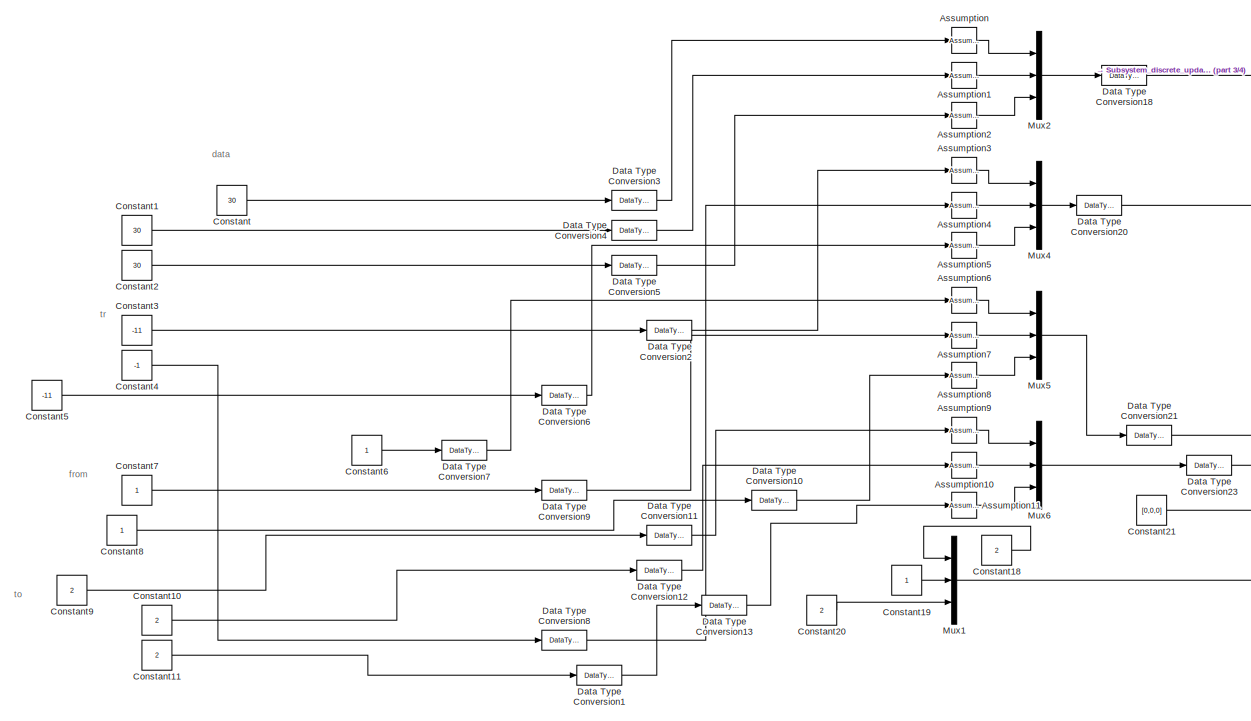
[diagram: root canvas - part 1/4, middle left region]
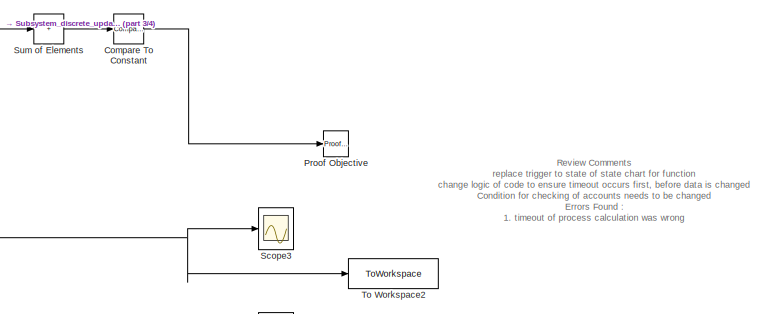
[diagram: root canvas - part 2/4, top right region]
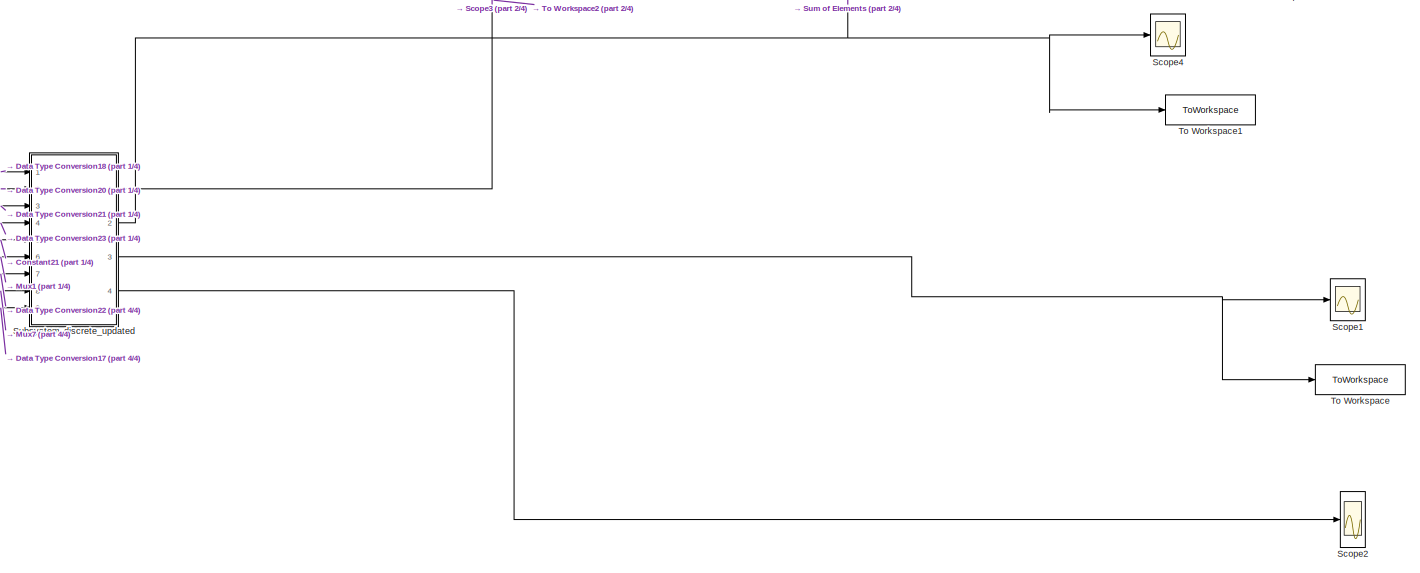
[diagram: root canvas - part 3/4, bottom right region]
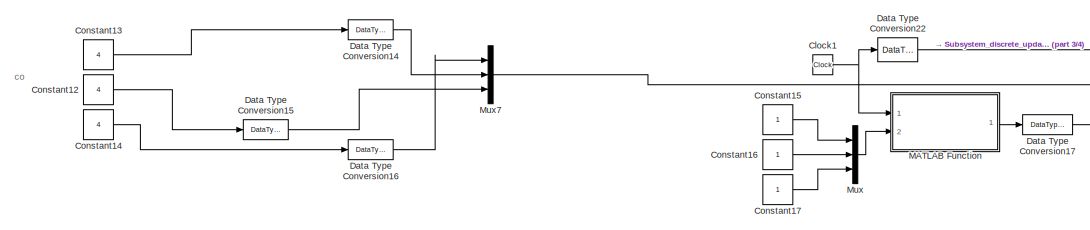
[diagram: root canvas - part 4/4, bottom left region]
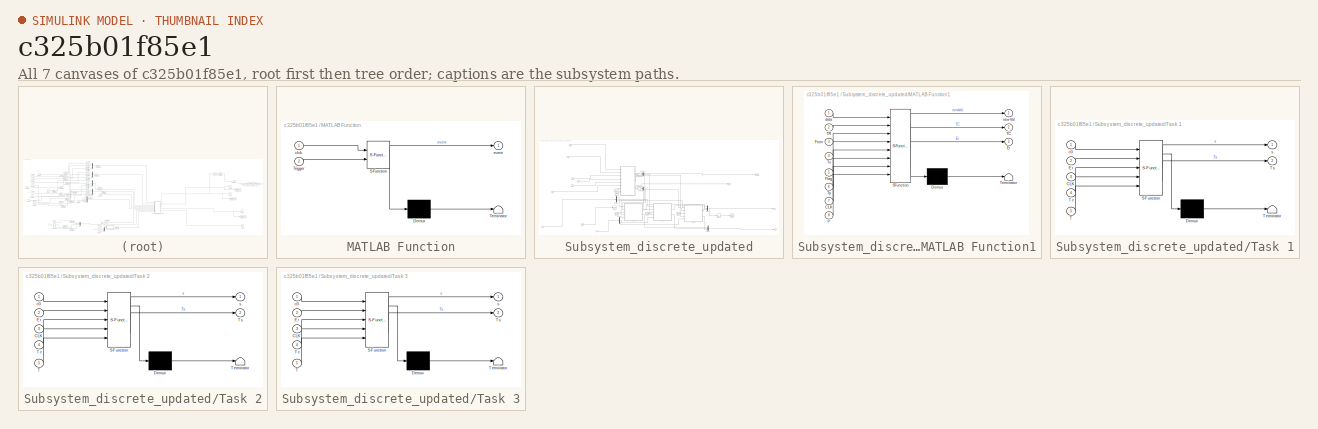
[diagram: thumbnail index - all 7 canvases of the model, root first then tree order]
MODEL slx_c325b01f85e1
KIND model
CONFIG AbsTol = auto
CONFIG EnableMultiTasking = off
CONFIG FixedStep = 1
CONFIG MaxStep = auto
CONFIG MinStep = auto
CONFIG RelTol = 1e-3
CONFIG SampleTimeConstraint = Unconstrained
CONFIG SolverName = FixedStepDiscrete
CONFIG StartTime = 0.0
CONFIG StopTime = 20.0
BLOCK [Reference] Assumption  REF=sldvlib/Objectives and Constraints/Assumption
  AttributesFormatString = %<intervals>
  NameLocation = top
  Ports = [1, 1]
  SourceBlock = sldvlib/Objectives and Constraints/Assumption
  SourceProductBaseCode = SL
  SourceType = Design Verifier Assumption
BLOCK [Reference] Assumption1  REF=sldvlib/Objectives and Constraints/Assumption
  AttributesFormatString = %<intervals>
  NameLocation = top
  Ports = [1, 1]
  SourceBlock = sldvlib/Objectives and Constraints/Assumption
  SourceProductBaseCode = SL
  SourceType = Design Verifier Assumption
BLOCK [Reference] Assumption10  REF=sldvlib/Objectives and Constraints/Assumption
  AttributesFormatString = %<intervals>
  NameLocation = top
  Ports = [1, 1]
  SourceBlock = sldvlib/Objectives and Constraints/Assumption
  SourceProductBaseCode = SL
  SourceType = Design Verifier Assumption
BLOCK [Reference] Assumption11  REF=sldvlib/Objectives and Constraints/Assumption
  AttributesFormatString = %<intervals>
  NameLocation = top
  Ports = [1, 1]
  SourceBlock = sldvlib/Objectives and Constraints/Assumption
  SourceProductBaseCode = SL
  SourceType = Design Verifier Assumption
BLOCK [Reference] Assumption2  REF=sldvlib/Objectives and Constraints/Assumption
  AttributesFormatString = %<intervals>
  NameLocation = top
  Ports = [1, 1]
  SourceBlock = sldvlib/Objectives and Constraints/Assumption
  SourceProductBaseCode = SL
  SourceType = Design Verifier Assumption
BLOCK [Reference] Assumption3  REF=sldvlib/Objectives and Constraints/Assumption
  AttributesFormatString = %<intervals>
  NameLocation = top
  Ports = [1, 1]
  SourceBlock = sldvlib/Objectives and Constraints/Assumption
  SourceProductBaseCode = SL
  SourceType = Design Verifier Assumption
BLOCK [Reference] Assumption4  REF=sldvlib/Objectives and Constraints/Assumption
  AttributesFormatString = %<intervals>
  NameLocation = top
  Ports = [1, 1]
  SourceBlock = sldvlib/Objectives and Constraints/Assumption
  SourceProductBaseCode = SL
  SourceType = Design Verifier Assumption
BLOCK [Reference] Assumption5  REF=sldvlib/Objectives and Constraints/Assumption
  AttributesFormatString = %<intervals>
  NameLocation = top
  Ports = [1, 1]
  SourceBlock = sldvlib/Objectives and Constraints/Assumption
  SourceProductBaseCode = SL
  SourceType = Design Verifier Assumption
BLOCK [Reference] Assumption6  REF=sldvlib/Objectives and Constraints/Assumption
  AttributesFormatString = %<intervals>
  NameLocation = top
  Ports = [1, 1]
  SourceBlock = sldvlib/Objectives and Constraints/Assumption
  SourceProductBaseCode = SL
  SourceType = Design Verifier Assumption
BLOCK [Reference] Assumption7  REF=sldvlib/Objectives and Constraints/Assumption
  AttributesFormatString = %<intervals>
  NameLocation = top
  Ports = [1, 1]
  SourceBlock = sldvlib/Objectives and Constraints/Assumption
  SourceProductBaseCode = SL
  SourceType = Design Verifier Assumption
BLOCK [Reference] Assumption8  REF=sldvlib/Objectives and Constraints/Assumption
  AttributesFormatString = %<intervals>
  NameLocation = top
  Ports = [1, 1]
  SourceBlock = sldvlib/Objectives and Constraints/Assumption
  SourceProductBaseCode = SL
  SourceType = Design Verifier Assumption
BLOCK [Reference] Assumption9  REF=sldvlib/Objectives and Constraints/Assumption
  AttributesFormatString = %<intervals>
  NameLocation = top
  Ports = [1, 1]
  SourceBlock = sldvlib/Objectives and Constraints/Assumption
  SourceProductBaseCode = SL
  SourceType = Design Verifier Assumption
BLOCK [Clock] Clock1
BLOCK [Reference] Compare To Constant  REF=simulink/Logic and Bit
Operations/Compare
To Constant
  Ports = [1, 1]
  SourceBlock = simulink/Logic and Bit\nOperations/Compare\nTo Constant
  SourceProductBaseCode = SL
  SourceType = Compare To Constant
BLOCK [Constant] Constant
  Value = 30
BLOCK [Constant] Constant1
  Value = 30
BLOCK [Constant] Constant10
  Value = 2
BLOCK [Constant] Constant11
  Value = 2
BLOCK [Constant] Constant12
  Value = 4
BLOCK [Constant] Constant13
  Value = 4
BLOCK [Constant] Constant14
  Value = 4
BLOCK [Constant] Constant15
BLOCK [Constant] Constant16
BLOCK [Constant] Constant17
BLOCK [Constant] Constant18
  Value = 2
BLOCK [Constant] Constant19
BLOCK [Constant] Constant2
  Value = 30
BLOCK [Constant] Constant20
  Value = 2
BLOCK [Constant] Constant21
  Value = [0,0,0]
BLOCK [Constant] Constant3
  Value = -11
BLOCK [Constant] Constant4
  Value = -1
BLOCK [Constant] Constant5
  Value = -11
BLOCK [Constant] Constant6
BLOCK [Constant] Constant7
BLOCK [Constant] Constant8
BLOCK [Constant] Constant9
  Value = 2
BLOCK [DataTypeConversion] Data Type Conversion1
  OutDataTypeStr = uint16
  RndMeth = Round
  SaturateOnIntegerOverflow = off
BLOCK [DataTypeConversion] Data Type Conversion10
  OutDataTypeStr = uint16
  RndMeth = Round
  SaturateOnIntegerOverflow = off
BLOCK [DataTypeConversion] Data Type Conversion11
  OutDataTypeStr = uint16
  RndMeth = Round
  SaturateOnIntegerOverflow = off
BLOCK [DataTypeConversion] Data Type Conversion12
  OutDataTypeStr = uint16
  RndMeth = Round
  SaturateOnIntegerOverflow = off
BLOCK [DataTypeConversion] Data Type Conversion13
  OutDataTypeStr = uint16
  RndMeth = Round
  SaturateOnIntegerOverflow = off
BLOCK [DataTypeConversion] Data Type Conversion14
  OutDataTypeStr = uint16
  RndMeth = Round
  SaturateOnIntegerOverflow = off
BLOCK [DataTypeConversion] Data Type Conversion15
  OutDataTypeStr = uint16
  RndMeth = Round
  SaturateOnIntegerOverflow = off
BLOCK [DataTypeConversion] Data Type Conversion16
  OutDataTypeStr = uint16
  RndMeth = Round
  SaturateOnIntegerOverflow = off
BLOCK [DataTypeConversion] Data Type Conversion17
  OutDataTypeStr = boolean
  RndMeth = Round
  SaturateOnIntegerOverflow = off
BLOCK [DataTypeConversion] Data Type Conversion18
  OutDataTypeStr = double
  RndMeth = Round
  SaturateOnIntegerOverflow = off
BLOCK [DataTypeConversion] Data Type Conversion2
  OutDataTypeStr = double
  RndMeth = Round
  SaturateOnIntegerOverflow = off
BLOCK [DataTypeConversion] Data Type Conversion20
  OutDataTypeStr = double
  RndMeth = Round
  SaturateOnIntegerOverflow = off
BLOCK [DataTypeConversion] Data Type Conversion21
  OutDataTypeStr = double
  RndMeth = Round
  SaturateOnIntegerOverflow = off
BLOCK [DataTypeConversion] Data Type Conversion22
  OutDataTypeStr = uint16
  RndMeth = Round
  SaturateOnIntegerOverflow = off
BLOCK [DataTypeConversion] Data Type Conversion23
  OutDataTypeStr = double
  RndMeth = Round
  SaturateOnIntegerOverflow = off
BLOCK [DataTypeConversion] Data Type Conversion3
  OutDataTypeStr = uint16
  RndMeth = Round
  SaturateOnIntegerOverflow = off
BLOCK [DataTypeConversion] Data Type Conversion4
  OutDataTypeStr = uint16
  RndMeth = Round
  SaturateOnIntegerOverflow = off
BLOCK [DataTypeConversion] Data Type Conversion5
  OutDataTypeStr = uint16
  RndMeth = Round
  SaturateOnIntegerOverflow = off
BLOCK [DataTypeConversion] Data Type Conversion6
  OutDataTypeStr = double
  RndMeth = Round
  SaturateOnIntegerOverflow = off
BLOCK [DataTypeConversion] Data Type Conversion7
  OutDataTypeStr = uint16
  RndMeth = Round
  SaturateOnIntegerOverflow = off
BLOCK [DataTypeConversion] Data Type Conversion8
  OutDataTypeStr = double
  RndMeth = Round
  SaturateOnIntegerOverflow = off
BLOCK [DataTypeConversion] Data Type Conversion9
  OutDataTypeStr = uint16
  RndMeth = Round
  SaturateOnIntegerOverflow = off
BLOCK [SubSystem] MATLAB Function
  ErrorFcn = Stateflow.Translate.translate
  PermitHierarchicalResolution = ExplicitOnly
  Ports = [2, 1]
  RequestExecContextInheritance = off
  SFBlockType = MATLAB Function
  TreatAsAtomicUnit = on
BLOCK [Demux] MATLAB Function/ Demux 
  Outputs = 1
  Ports = [1, 1]
BLOCK [S-Function] MATLAB Function/ SFunction 
  EnableBusSupport = on
  FunctionName = sf_sfun
  PortCounts = [2 2]
  Ports = [2, 2]
  SFcnIsStateOwnerBlock = off
  SFunctionDeploymentMode = off
  Tag = Stateflow S-Function 2
BLOCK [Terminator] MATLAB Function/ Terminator 
BLOCK [Inport] MATLAB Function/Trigger
  Port = 2
BLOCK [Inport] MATLAB Function/clck
BLOCK [Outport] MATLAB Function/event
BLOCK [Mux] Mux
  DisplayOption = bar
  Inputs = 3
  Ports = [3, 1]
BLOCK [Mux] Mux1
  DisplayOption = bar
  Inputs = 3
  Ports = [3, 1]
BLOCK [Mux] Mux2
  DisplayOption = bar
  Inputs = 3
  Ports = [3, 1]
BLOCK [Mux] Mux4
  DisplayOption = bar
  Inputs = 3
  Ports = [3, 1]
BLOCK [Mux] Mux5
  DisplayOption = bar
  Inputs = 3
  Ports = [3, 1]
BLOCK [Mux] Mux6
  DisplayOption = bar
  Inputs = 3
  Ports = [3, 1]
BLOCK [Mux] Mux7
  DisplayOption = bar
  Inputs = 3
  Ports = [3, 1]
BLOCK [Reference] Proof Objective  REF=sldvlib/Objectives and Constraints/Proof Objective
  AttributesFormatString = %<intervals>
  NameLocation = top
  Ports = [1]
  SourceBlock = sldvlib/Objectives and Constraints/Proof Objective
  SourceProductBaseCode = SL
  SourceType = Design Verifier Proof Objective
BLOCK [Scope] Scope1
  Floating = off
  NumInputPorts = 1
  Ports = [1]
  ScopeSpecificationString = Simulink.scopes.TimeScopeBlockCfg('CurrentConfiguration', extmgr.ConfigurationSet(extmgr.Configuration('Core','General UI',true),extmgr.Configuration('Core','Source UI',true),extmgr.Configuration('Sources','WiredSimulink',true,'DataLoggingVariableName','ScopeData1'),extmgr.Configuration('Visuals','Time Domain',true,'SerializedDisplays',{struct('MinYLimReal','-0.375','MaxYLimReal','3.375','YLabelRe...<+1538ch>
BLOCK [Scope] Scope2
  Floating = off
  NumInputPorts = 3
  Ports = [3]
  ScopeSpecificationString = Simulink.scopes.TimeScopeBlockCfg('CurrentConfiguration', extmgr.ConfigurationSet(extmgr.Configuration('Core','General UI',true),extmgr.Configuration('Core','Source UI',true),extmgr.Configuration('Sources','WiredSimulink',true,'DataLoggingVariableName','ScopeData2'),extmgr.Configuration('Visuals','Time Domain',true,'SerializedDisplays',{struct('MinYLimReal','-0.125','MaxYLimReal','1.125','YLabelRe...<+1452ch>
BLOCK [Scope] Scope3
  Floating = off
  NumInputPorts = 1
  Ports = [1]
  ScopeSpecificationString = Simulink.scopes.TimeScopeBlockCfg('CurrentConfiguration', extmgr.ConfigurationSet(extmgr.Configuration('Core','General UI',true),extmgr.Configuration('Core','Source UI',true),extmgr.Configuration('Sources','WiredSimulink',true,'DataLoggingVariableName','ScopeData3'),extmgr.Configuration('Visuals','Time Domain',true,'SerializedDisplays',{struct('MinYLimReal','15.00000','MaxYLimReal','45.00000','YLa...<+1503ch>
BLOCK [Scope] Scope4
  Floating = off
  NumInputPorts = 1
  Ports = [1]
  ScopeSpecificationString = Simulink.scopes.TimeScopeBlockCfg('CurrentConfiguration', extmgr.ConfigurationSet(extmgr.Configuration('Core','General UI',true),extmgr.Configuration('Core','Source UI',true),extmgr.Configuration('Sources','WiredSimulink',true,'DataLoggingVariableName','ScopeData4'),extmgr.Configuration('Visuals','Time Domain',true,'SerializedDisplays',{struct('MinYLimReal','-0.125','MaxYLimReal','1.125','YLabelRe...<+1538ch>
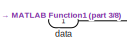
[diagram: Subsystem_discrete_updated - part 1/8, top left region]
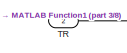
[diagram: Subsystem_discrete_updated - part 2/8, top left region]
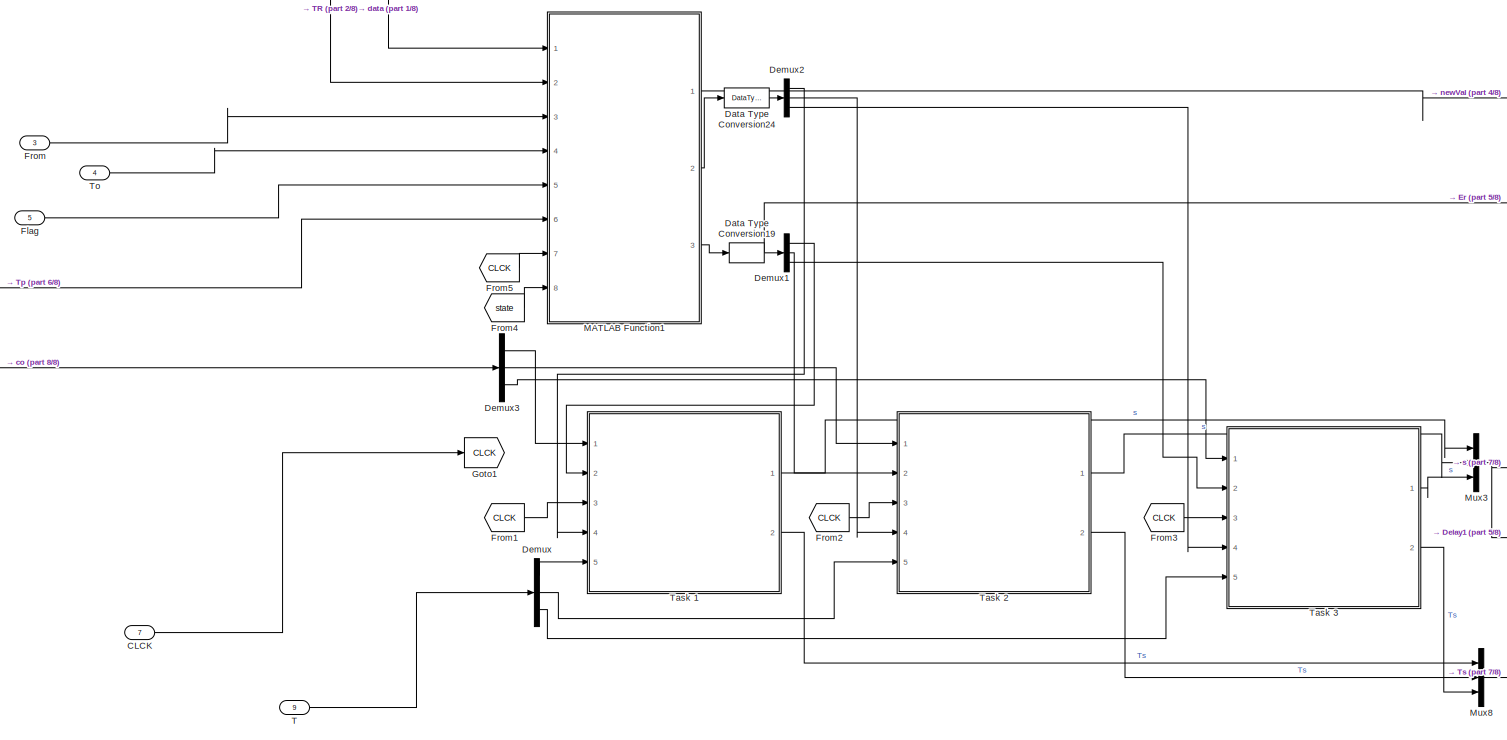
[diagram: Subsystem_discrete_updated - part 3/8, center side, full height]
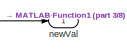
[diagram: Subsystem_discrete_updated - part 4/8, middle right region]
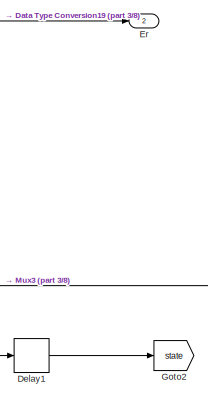
[diagram: Subsystem_discrete_updated - part 5/8, middle right region]
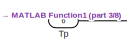
[diagram: Subsystem_discrete_updated - part 6/8, middle left region]
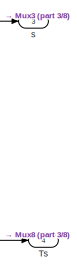
[diagram: Subsystem_discrete_updated - part 7/8, bottom right region]
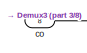
[diagram: Subsystem_discrete_updated - part 8/8, bottom left region]
BLOCK [SubSystem] Subsystem_discrete_updated
  Ports = [9, 4]
  RequestExecContextInheritance = off
BLOCK [Inport] Subsystem_discrete_updated/CLCK
  Port = 7
BLOCK [DataTypeConversion] Subsystem_discrete_updated/Data Type Conversion19
  OutDataTypeStr = uint16
  RndMeth = Round
  SaturateOnIntegerOverflow = off
BLOCK [DataTypeConversion] Subsystem_discrete_updated/Data Type Conversion24
  OutDataTypeStr = boolean
  RndMeth = Round
  SaturateOnIntegerOverflow = off
BLOCK [Delay] Subsystem_discrete_updated/Delay1
  DelayLength = 1
  InputPortMap = u0
  Ports = [1, 1]
BLOCK [Demux] Subsystem_discrete_updated/Demux
  Outputs = 3
  Ports = [1, 3]
BLOCK [Demux] Subsystem_discrete_updated/Demux1
  Outputs = 3
  Ports = [1, 3]
BLOCK [Demux] Subsystem_discrete_updated/Demux2
  Outputs = 3
  Ports = [1, 3]
BLOCK [Demux] Subsystem_discrete_updated/Demux3
  Outputs = 3
  Ports = [1, 3]
BLOCK [Outport] Subsystem_discrete_updated/Er
  Port = 2
BLOCK [Inport] Subsystem_discrete_updated/Flag
  Port = 5
BLOCK [Inport] Subsystem_discrete_updated/From
  Port = 3
BLOCK [From] Subsystem_discrete_updated/From1
  GotoTag = CLCK
BLOCK [From] Subsystem_discrete_updated/From2
  GotoTag = CLCK
BLOCK [From] Subsystem_discrete_updated/From3
  GotoTag = CLCK
BLOCK [From] Subsystem_discrete_updated/From4
  GotoTag = state
BLOCK [From] Subsystem_discrete_updated/From5
  GotoTag = CLCK
BLOCK [Goto] Subsystem_discrete_updated/Goto1
  GotoTag = CLCK
BLOCK [Goto] Subsystem_discrete_updated/Goto2
  GotoTag = state
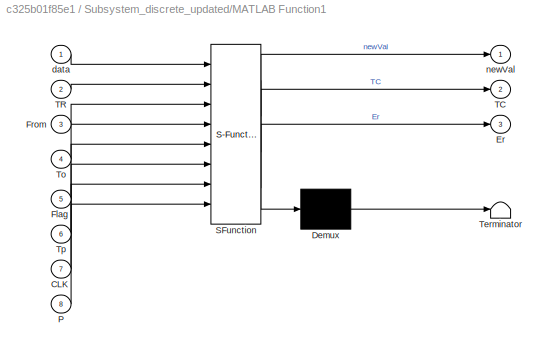
BLOCK [SubSystem] Subsystem_discrete_updated/MATLAB Function1
  ErrorFcn = Stateflow.Translate.translate
  PermitHierarchicalResolution = ExplicitOnly
  Ports = [8, 3]
  RequestExecContextInheritance = off
  SFBlockType = MATLAB Function
  TreatAsAtomicUnit = on
BLOCK [Demux] Subsystem_discrete_updated/MATLAB Function1/ Demux 
  Outputs = 1
  Ports = [1, 1]
BLOCK [S-Function] Subsystem_discrete_updated/MATLAB Function1/ SFunction 
  EnableBusSupport = on
  FunctionName = sf_sfun
  PortCounts = [8 4]
  Ports = [8, 4]
  SFcnIsStateOwnerBlock = off
  SFunctionDeploymentMode = off
  Tag = Stateflow S-Function 5
BLOCK [Terminator] Subsystem_discrete_updated/MATLAB Function1/ Terminator 
BLOCK [Inport] Subsystem_discrete_updated/MATLAB Function1/CLK
  Port = 7
BLOCK [Outport] Subsystem_discrete_updated/MATLAB Function1/Er
  Port = 3
BLOCK [Inport] Subsystem_discrete_updated/MATLAB Function1/Flag
  Port = 5
BLOCK [Inport] Subsystem_discrete_updated/MATLAB Function1/From
  Port = 3
BLOCK [Inport] Subsystem_discrete_updated/MATLAB Function1/P
  Port = 8
BLOCK [Outport] Subsystem_discrete_updated/MATLAB Function1/TC
  Port = 2
BLOCK [Inport] Subsystem_discrete_updated/MATLAB Function1/TR
  Port = 2
BLOCK [Inport] Subsystem_discrete_updated/MATLAB Function1/To
  Port = 4
BLOCK [Inport] Subsystem_discrete_updated/MATLAB Function1/Tp
  Port = 6
BLOCK [Inport] Subsystem_discrete_updated/MATLAB Function1/data
BLOCK [Outport] Subsystem_discrete_updated/MATLAB Function1/newVal
BLOCK [Mux] Subsystem_discrete_updated/Mux3
  DisplayOption = bar
  Inputs = 3
  Ports = [3, 1]
BLOCK [Mux] Subsystem_discrete_updated/Mux8
  DisplayOption = bar
  Inputs = 3
  Ports = [3, 1]
BLOCK [Inport] Subsystem_discrete_updated/T
  Port = 9
BLOCK [Inport] Subsystem_discrete_updated/TR
  Port = 2
BLOCK [SubSystem] Subsystem_discrete_updated/Task 1
  ErrorFcn = Stateflow.Translate.translate
  PermitHierarchicalResolution = ExplicitOnly
  Ports = [5, 2]
  RequestExecContextInheritance = off
  SFBlockType = Chart
  TreatAsAtomicUnit = on
BLOCK [Demux] Subsystem_discrete_updated/Task 1/ Demux 
  Outputs = 1
  Ports = [1, 1]
BLOCK [S-Function] Subsystem_discrete_updated/Task 1/ SFunction 
  EnableBusSupport = on
  FunctionName = sf_sfun
  PortCounts = [5 3]
  Ports = [5, 3]
  SFcnIsStateOwnerBlock = off
  SFunctionDeploymentMode = off
  Tag = Stateflow S-Function 3
BLOCK [Terminator] Subsystem_discrete_updated/Task 1/ Terminator 
BLOCK [Inport] Subsystem_discrete_updated/Task 1/CLK
  Port = 3
BLOCK [Inport] Subsystem_discrete_updated/Task 1/Er
  Port = 2
BLOCK [Inport] Subsystem_discrete_updated/Task 1/T
  Port = 5
BLOCK [Inport] Subsystem_discrete_updated/Task 1/Tc
  Port = 4
BLOCK [Outport] Subsystem_discrete_updated/Task 1/Ts
  Port = 2
BLOCK [Inport] Subsystem_discrete_updated/Task 1/c0
BLOCK [Outport] Subsystem_discrete_updated/Task 1/s
BLOCK [SubSystem] Subsystem_discrete_updated/Task 2
  ErrorFcn = Stateflow.Translate.translate
  PermitHierarchicalResolution = ExplicitOnly
  Ports = [5, 2]
  RequestExecContextInheritance = off
  SFBlockType = Chart
  TreatAsAtomicUnit = on
BLOCK [Demux] Subsystem_discrete_updated/Task 2/ Demux 
  Outputs = 1
  Ports = [1, 1]
BLOCK [S-Function] Subsystem_discrete_updated/Task 2/ SFunction 
  EnableBusSupport = on
  FunctionName = sf_sfun
  PortCounts = [5 3]
  Ports = [5, 3]
  SFcnIsStateOwnerBlock = off
  SFunctionDeploymentMode = off
  Tag = Stateflow S-Function 1
BLOCK [Terminator] Subsystem_discrete_updated/Task 2/ Terminator 
BLOCK [Inport] Subsystem_discrete_updated/Task 2/CLK
  Port = 3
BLOCK [Inport] Subsystem_discrete_updated/Task 2/Er
  Port = 2
BLOCK [Inport] Subsystem_discrete_updated/Task 2/T
  Port = 5
BLOCK [Inport] Subsystem_discrete_updated/Task 2/Tc
  Port = 4
BLOCK [Outport] Subsystem_discrete_updated/Task 2/Ts
  Port = 2
BLOCK [Inport] Subsystem_discrete_updated/Task 2/c0
BLOCK [Outport] Subsystem_discrete_updated/Task 2/s
BLOCK [SubSystem] Subsystem_discrete_updated/Task 3
  ErrorFcn = Stateflow.Translate.translate
  PermitHierarchicalResolution = ExplicitOnly
  Ports = [5, 2]
  RequestExecContextInheritance = off
  SFBlockType = Chart
  TreatAsAtomicUnit = on
BLOCK [Demux] Subsystem_discrete_updated/Task 3/ Demux 
  Outputs = 1
  Ports = [1, 1]
BLOCK [S-Function] Subsystem_discrete_updated/Task 3/ SFunction 
  EnableBusSupport = on
  FunctionName = sf_sfun
  PortCounts = [5 3]
  Ports = [5, 3]
  SFcnIsStateOwnerBlock = off
  SFunctionDeploymentMode = off
  Tag = Stateflow S-Function 4
BLOCK [Terminator] Subsystem_discrete_updated/Task 3/ Terminator 
BLOCK [Inport] Subsystem_discrete_updated/Task 3/CLK
  Port = 3
BLOCK [Inport] Subsystem_discrete_updated/Task 3/Er
  Port = 2
BLOCK [Inport] Subsystem_discrete_updated/Task 3/T
  Port = 5
BLOCK [Inport] Subsystem_discrete_updated/Task 3/Tc
  Port = 4
BLOCK [Outport] Subsystem_discrete_updated/Task 3/Ts
  Port = 2
BLOCK [Inport] Subsystem_discrete_updated/Task 3/c0
BLOCK [Outport] Subsystem_discrete_updated/Task 3/s
BLOCK [Inport] Subsystem_discrete_updated/To
  Port = 4
BLOCK [Inport] Subsystem_discrete_updated/Tp
  Port = 6
BLOCK [Outport] Subsystem_discrete_updated/Ts
  Port = 4
BLOCK [Inport] Subsystem_discrete_updated/co
  Port = 8
BLOCK [Inport] Subsystem_discrete_updated/data
BLOCK [Outport] Subsystem_discrete_updated/newVal
BLOCK [Outport] Subsystem_discrete_updated/s
  Port = 3
BLOCK [Sum] Sum of Elements
  IconShape = rectangular
  Inputs = +
  Ports = [1, 1]
BLOCK [ToWorkspace] To Workspace
  FixptAsFi = on
  MaxDataPoints = inf
  Ports = [1]
  SampleTime = -1
  VariableName = state
BLOCK [ToWorkspace] To Workspace1
  FixptAsFi = on
  MaxDataPoints = inf
  Ports = [1]
  SampleTime = -1
  VariableName = Err
BLOCK [ToWorkspace] To Workspace2
  FixptAsFi = on
  MaxDataPoints = inf
  Ports = [1]
  SampleTime = -1
  VariableName = vals
ANNOTATION (root): Review Comments replace trigger to state of state chart for function change logic of code to ensure timeout occurs first, before data is changed Condition for checking of accounts needs to be changed Errors Found : 1. timeout of process calculation was wrong 2. Priority order of state 2 and 3 transitions 3. State output if error feedback to function - state output > overall time function time > pr...<+10ch>
ANNOTATION (root): co
ANNOTATION (root): data
ANNOTATION (root): from
ANNOTATION (root): to
ANNOTATION (root): tr
LINE Assumption10:1 -> Mux6:2
LINE Assumption11:1 -> Mux6:3
LINE Assumption1:1 -> Mux2:2
LINE Assumption2:1 -> Mux2:3
LINE Assumption3:1 -> Mux4:1
LINE Assumption4:1 -> Mux4:2
LINE Assumption5:1 -> Mux4:3
LINE Assumption6:1 -> Mux5:1
LINE Assumption7:1 -> Mux5:2
LINE Assumption8:1 -> Mux5:3
LINE Assumption9:1 -> Mux6:1
LINE Assumption:1 -> Mux2:1
NET Clock1:1 -> Data Type Conversion22:1, MATLAB Function:1
LINE Compare To Constant:1 -> Proof Objective:1
LINE Constant10:1 -> Data Type Conversion12:1
LINE Constant11:1 -> Data Type Conversion1:1
LINE Constant12:1 -> Data Type Conversion15:1
LINE Constant13:1 -> Data Type Conversion14:1
LINE Constant14:1 -> Data Type Conversion16:1
LINE Constant15:1 -> Mux:1
LINE Constant16:1 -> Mux:2
LINE Constant17:1 -> Mux:3
LINE Constant18:1 -> Mux1:1
LINE Constant19:1 -> Mux1:2
LINE Constant1:1 -> Data Type Conversion4:1
LINE Constant20:1 -> Mux1:3
LINE Constant21:1 -> Subsystem_discrete_updated:5
LINE Constant2:1 -> Data Type Conversion5:1
LINE Constant3:1 -> Data Type Conversion2:1
LINE Constant4:1 -> Data Type Conversion8:1
LINE Constant5:1 -> Data Type Conversion6:1
LINE Constant6:1 -> Data Type Conversion7:1
LINE Constant7:1 -> Data Type Conversion9:1
LINE Constant8:1 -> Data Type Conversion10:1
LINE Constant9:1 -> Data Type Conversion11:1
LINE Constant:1 -> Data Type Conversion3:1
LINE Data Type Conversion10:1 -> Assumption8:1
LINE Data Type Conversion11:1 -> Assumption9:1
LINE Data Type Conversion12:1 -> Assumption10:1
LINE Data Type Conversion13:1 -> Assumption11:1
LINE Data Type Conversion14:1 -> Mux7:2
LINE Data Type Conversion15:1 -> Mux7:3
LINE Data Type Conversion16:1 -> Mux7:1
LINE Data Type Conversion17:1 -> Subsystem_discrete_updated:9
LINE Data Type Conversion18:1 -> Subsystem_discrete_updated:1
LINE Data Type Conversion1:1 -> Data Type Conversion13:1
LINE Data Type Conversion20:1 -> Subsystem_discrete_updated:2
LINE Data Type Conversion21:1 -> Subsystem_discrete_updated:3
LINE Data Type Conversion22:1 -> Subsystem_discrete_updated:7
LINE Data Type Conversion23:1 -> Subsystem_discrete_updated:4
LINE Data Type Conversion2:1 -> Assumption3:1
LINE Data Type Conversion3:1 -> Assumption:1
LINE Data Type Conversion4:1 -> Assumption1:1
LINE Data Type Conversion5:1 -> Assumption2:1
LINE Data Type Conversion6:1 -> Assumption5:1
LINE Data Type Conversion7:1 -> Assumption6:1
LINE Data Type Conversion8:1 -> Assumption4:1
LINE Data Type Conversion9:1 -> Assumption7:1
LINE MATLAB Function:1 -> Data Type Conversion17:1
LINE Mux1:1 -> Subsystem_discrete_updated:6
LINE Mux2:1 -> Data Type Conversion18:1
LINE Mux4:1 -> Data Type Conversion20:1
LINE Mux5:1 -> Data Type Conversion21:1
LINE Mux6:1 -> Data Type Conversion23:1
LINE Mux7:1 -> Subsystem_discrete_updated:8
LINE Mux:1 -> MATLAB Function:2
LINE Subsystem_discrete_updated/CLCK:1 -> Subsystem_discrete_updated/Goto1:1
NET Subsystem_discrete_updated/Data Type Conversion19:1 -> Subsystem_discrete_updated/Demux1:1, Subsystem_discrete_updated/Er:1
LINE Subsystem_discrete_updated/Data Type Conversion24:1 -> Subsystem_discrete_updated/Demux2:1
LINE Subsystem_discrete_updated/Delay1:1 -> Subsystem_discrete_updated/Goto2:1
LINE Subsystem_discrete_updated/Demux1:1 -> Subsystem_discrete_updated/Task 1:2
LINE Subsystem_discrete_updated/Demux1:2 -> Subsystem_discrete_updated/Task 2:2
LINE Subsystem_discrete_updated/Demux1:3 -> Subsystem_discrete_updated/Task 3:2
LINE Subsystem_discrete_updated/Demux2:1 -> Subsystem_discrete_updated/Task 1:4
LINE Subsystem_discrete_updated/Demux2:2 -> Subsystem_discrete_updated/Task 2:4
LINE Subsystem_discrete_updated/Demux2:3 -> Subsystem_discrete_updated/Task 3:4
LINE Subsystem_discrete_updated/Demux3:1 -> Subsystem_discrete_updated/Task 1:1
LINE Subsystem_discrete_updated/Demux3:2 -> Subsystem_discrete_updated/Task 2:1
LINE Subsystem_discrete_updated/Demux3:3 -> Subsystem_discrete_updated/Task 3:1
LINE Subsystem_discrete_updated/Demux:1 -> Subsystem_discrete_updated/Task 1:5
LINE Subsystem_discrete_updated/Demux:2 -> Subsystem_discrete_updated/Task 2:5
LINE Subsystem_discrete_updated/Demux:3 -> Subsystem_discrete_updated/Task 3:5
LINE Subsystem_discrete_updated/Flag:1 -> Subsystem_discrete_updated/MATLAB Function1:5
LINE Subsystem_discrete_updated/From1:1 -> Subsystem_discrete_updated/Task 1:3
LINE Subsystem_discrete_updated/From2:1 -> Subsystem_discrete_updated/Task 2:3
LINE Subsystem_discrete_updated/From3:1 -> Subsystem_discrete_updated/Task 3:3
LINE Subsystem_discrete_updated/From4:1 -> Subsystem_discrete_updated/MATLAB Function1:8
LINE Subsystem_discrete_updated/From5:1 -> Subsystem_discrete_updated/MATLAB Function1:7
LINE Subsystem_discrete_updated/From:1 -> Subsystem_discrete_updated/MATLAB Function1:3
LINE Subsystem_discrete_updated/MATLAB Function1:1 -> Subsystem_discrete_updated/newVal:1
LINE Subsystem_discrete_updated/MATLAB Function1:2 -> Subsystem_discrete_updated/Data Type Conversion24:1
LINE Subsystem_discrete_updated/MATLAB Function1:3 -> Subsystem_discrete_updated/Data Type Conversion19:1
NET Subsystem_discrete_updated/Mux3:1 -> Subsystem_discrete_updated/Delay1:1, Subsystem_discrete_updated/s:1
LINE Subsystem_discrete_updated/Mux8:1 -> Subsystem_discrete_updated/Ts:1
LINE Subsystem_discrete_updated/T:1 -> Subsystem_discrete_updated/Demux:1
LINE Subsystem_discrete_updated/TR:1 -> Subsystem_discrete_updated/MATLAB Function1:2
LINE Subsystem_discrete_updated/Task 1:1 -> Subsystem_discrete_updated/Mux3:1
LINE Subsystem_discrete_updated/Task 1:2 -> Subsystem_discrete_updated/Mux8:1
LINE Subsystem_discrete_updated/Task 2:1 -> Subsystem_discrete_updated/Mux3:2
LINE Subsystem_discrete_updated/Task 2:2 -> Subsystem_discrete_updated/Mux8:2
LINE Subsystem_discrete_updated/Task 3:1 -> Subsystem_discrete_updated/Mux3:3
LINE Subsystem_discrete_updated/Task 3:2 -> Subsystem_discrete_updated/Mux8:3
LINE Subsystem_discrete_updated/To:1 -> Subsystem_discrete_updated/MATLAB Function1:4
LINE Subsystem_discrete_updated/Tp:1 -> Subsystem_discrete_updated/MATLAB Function1:6
LINE Subsystem_discrete_updated/co:1 -> Subsystem_discrete_updated/Demux3:1
LINE Subsystem_discrete_updated/data:1 -> Subsystem_discrete_updated/MATLAB Function1:1
NET Subsystem_discrete_updated:1 -> Scope3:1, To Workspace2:1
NET Subsystem_discrete_updated:2 -> Scope4:1, Sum of Elements:1, To Workspace1:1
NET Subsystem_discrete_updated:3 -> Scope1:1, To Workspace:1
LINE Subsystem_discrete_updated:4 -> Scope2:2
LINE Sum of Elements:1 -> Compare To Constant:1
note: NET lines group one-source signal fan-out (src -> all destinations, sorted); 1:1 wires keep LINE
CHART Subsystem_discrete_updated/Task 3 states=4 transitions=6
  STATE_LABEL 'Transact\nen:\ns = 1\nTs = CLK\ndu:\nc = c+1\n'
  STATE_LABEL 'Idle\nen:\nc = 0\ns = 0\nTs = 0'
  STATE_LABEL 'Error\nen:\ns = 2'
  STATE_LABEL 'Error1\nen:\ns = 3'
CHART Subsystem_discrete_updated/MATLAB Function1 states=1 transitions=1
  STATE_LABEL 'eML_blk_kernel()'
  STATE_LABEL 'SCRIPT:\nfunction [newVal, TC, Er] = fcn(data, TR, From, To, Flag, Tp, CLK, P)\npersistent d\npersistent f\npersistent TC1\npersistent Er1\npersistent timeo\npersistent init\npersistent From1\npersistent To1\npersistent TR1\nif(isempty(From1))\n    From1 = [1;1;1];\nend\nif(isempty(To1))\n    To1 = [1;1;1];\nend\nif(isempty(TR1))\n    TR1 = [1;1;1];\nend\nif(isempty(d))\n    d = [0;0;0];\nend\nif(isempty(init))\n    init...<+956ch>'
CHART Subsystem_discrete_updated/Task 2 states=4 transitions=6
  STATE_LABEL 'Transact\nen:\ns = 1\nTs = CLK\ndu:\nc = c+1\n'
  STATE_LABEL 'Idle\nen:\nc = 0\ns = 0\nTs = 0'
  STATE_LABEL 'Error\nen:\ns = 2'
  STATE_LABEL 'Error1\nen:\ns = 3'
CHART MATLAB Function states=1 transitions=1
  STATE_LABEL 'eML_blk_kernel()'
  STATE_LABEL 'SCRIPT:\nfunction event = fcn(clck, Trigger)\n    event = clck==Trigger;'
CHART Subsystem_discrete_updated/Task 1 states=4 transitions=6
  STATE_LABEL 'Transact\nen:\ns = 1\nTs = CLK\ndu:\nc = c+1\n'
  STATE_LABEL 'Idle\nen:\nc = 0\ns = 0\nTs = 0'
  STATE_LABEL 'Error\nen:\ns = 2'
  STATE_LABEL 'Error1\nen:\ns = 3'
CHART  states=0 transitions=0
CHART  states=0 transitions=0
CHART  states=0 transitions=0
CHART  states=0 transitions=0
CHART  states=0 transitions=0
